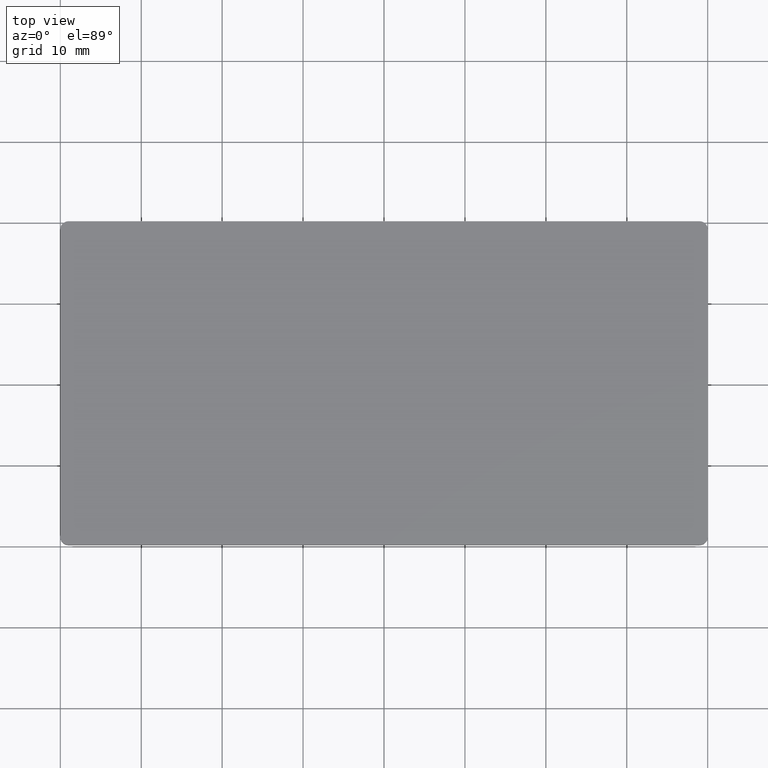
[diagram: clean part render]
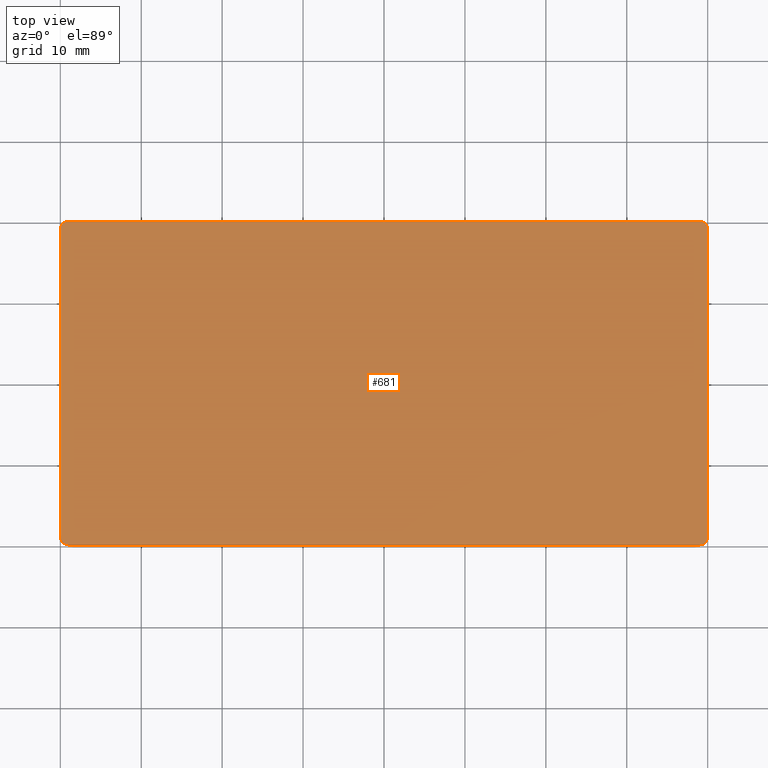
[diagram: same view with one face highlighted and labeled with its STEP entity id]
A machine part, top view. The second image highlights one B-rep face of the part: STEP entity #681.
In plain terms, the highlighted planar face has unit normal (0, 0, -1).
Its self-contained STEP definition (entity closure, byte-faithful):
#373=CARTESIAN_POINT('',(-40.0,1.0,3.000000000000000));
#374=VERTEX_POINT('',#373);
#381=CARTESIAN_POINT('',(-40.0,38.999999999999993,2.999999999999995));
#382=VERTEX_POINT('',#381);
#383=CARTESIAN_POINT('',(-40.0,1.0,3.000000000000000));
#384=DIRECTION('',(0.0,1.0,0.0));
#385=VECTOR('',#384,37.999999999999993);
#386=LINE('',#383,#385);
#387=EDGE_CURVE('',#374,#382,#386,.T.);
#403=CARTESIAN_POINT('',(-38.999999999999972,39.999999999999993,2.999999999999995));
#404=VERTEX_POINT('',#403);
#405=CARTESIAN_POINT('',(39.000000000000014,39.999999999999993,2.999999999999995));
#406=VERTEX_POINT('',#405);
#407=CARTESIAN_POINT('',(-38.999999999999972,39.999999999999993,2.999999999999995));
#408=DIRECTION('',(1.0,0.0,0.0));
#409=VECTOR('',#408,77.999999999999986);
#410=LINE('',#407,#409);
#411=EDGE_CURVE('',#404,#406,#410,.T.);
#453=CARTESIAN_POINT('',(40.000000000000014,38.999999999999993,2.999999999999995));
#454=VERTEX_POINT('',#453);
#461=CARTESIAN_POINT('',(40.000000000000014,1.0,3.000000000000000));
#462=VERTEX_POINT('',#461);
#463=CARTESIAN_POINT('',(40.000000000000014,38.999999999999993,2.999999999999995));
#464=DIRECTION('',(0.0,-1.0,0.0));
#465=VECTOR('',#464,37.999999999999993);
#466=LINE('',#463,#465);
#467=EDGE_CURVE('',#454,#462,#466,.T.);
#493=CARTESIAN_POINT('',(39.000000000000014,0.0,3.000000000000000));
#494=VERTEX_POINT('',#493);
#501=CARTESIAN_POINT('',(-39.000000000000014,0.0,3.000000000000000));
#502=VERTEX_POINT('',#501);
#503=CARTESIAN_POINT('',(39.000000000000014,0.0,3.000000000000000));
#504=DIRECTION('',(-1.0,0.0,0.0));
#505=VECTOR('',#504,78.000000000000028);
#506=LINE('',#503,#505);
#507=EDGE_CURVE('',#494,#502,#506,.T.);
#642=CARTESIAN_POINT('',(-44.0,41.999999999999993,2.999999999999995));
#643=DIRECTION('',(0.0,0.0,-1.0));
#644=DIRECTION('',(1.0,0.0,0.0));
#645=AXIS2_PLACEMENT_3D('',#642,#643,#644);
#646=PLANE('',#645);
#647=ORIENTED_EDGE('',*,*,#467,.F.);
#648=CARTESIAN_POINT('',(39.000000000000014,38.999999999999993,2.999999999999995));
#649=DIRECTION('',(0.0,1.224647E-016,1.0));
#650=DIRECTION('',(1.0,0.0,0.0));
#651=AXIS2_PLACEMENT_3D('',#648,#649,#650);
#652=CIRCLE('',#651,1.000000000000001);
#653=EDGE_CURVE('',#454,#406,#652,.T.);
#654=ORIENTED_EDGE('',*,*,#653,.T.);
#655=ORIENTED_EDGE('',*,*,#411,.F.);
#656=CARTESIAN_POINT('',(-38.999999999999972,38.999999999999993,2.999999999999995));
#657=DIRECTION('',(0.0,1.224647E-016,1.0));
#658=DIRECTION('',(1.0,0.0,0.0));
#659=AXIS2_PLACEMENT_3D('',#656,#657,#658);
#660=CIRCLE('',#659,1.000000000000001);
#661=EDGE_CURVE('',#404,#382,#660,.T.);
#662=ORIENTED_EDGE('',*,*,#661,.T.);
#663=ORIENTED_EDGE('',*,*,#387,.F.);
#664=CARTESIAN_POINT('',(-39.0,1.0,3.000000000000000));
#665=DIRECTION('',(0.0,1.224647E-016,1.0));
#666=DIRECTION('',(1.0,0.0,0.0));
#667=AXIS2_PLACEMENT_3D('',#664,#665,#666);
#668=CIRCLE('',#667,1.000000000000001);
#669=EDGE_CURVE('',#374,#502,#668,.T.);
#670=ORIENTED_EDGE('',*,*,#669,.T.);
#671=ORIENTED_EDGE('',*,*,#507,.F.);
#672=CARTESIAN_POINT('',(39.000000000000014,1.0,3.000000000000000));
#673=DIRECTION('',(0.0,1.224647E-016,1.0));
#674=DIRECTION('',(1.0,0.0,0.0));
#675=AXIS2_PLACEMENT_3D('',#672,#673,#674);
#676=CIRCLE('',#675,1.000000000000001);
#677=EDGE_CURVE('',#494,#462,#676,.T.);
#678=ORIENTED_EDGE('',*,*,#677,.T.);
#679=EDGE_LOOP('',(#647,#654,#655,#662,#663,#670,#671,#678));
#680=FACE_OUTER_BOUND('',#679,.T.);
#681=ADVANCED_FACE('',(#680),#646,.F.);